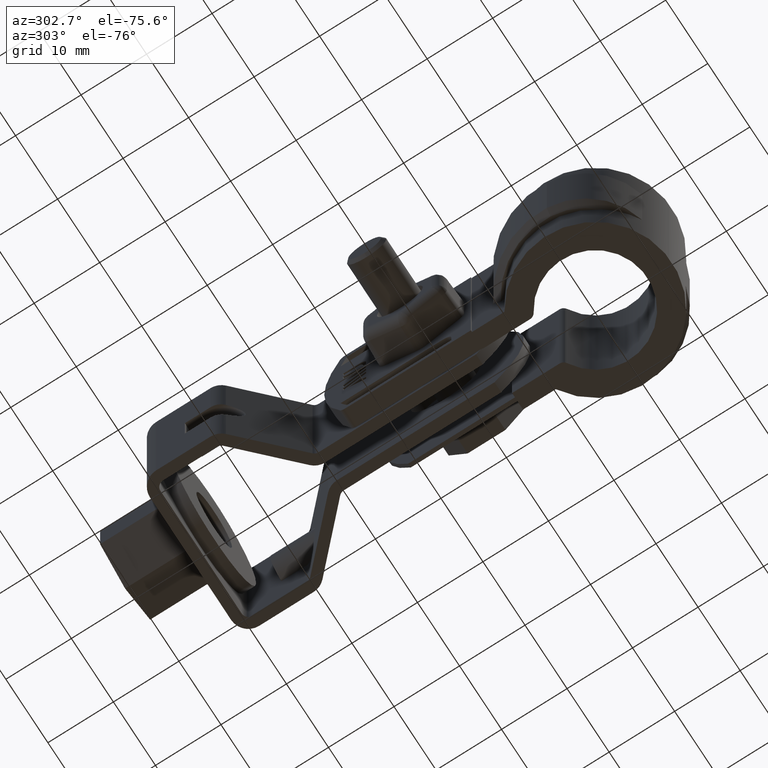
[diagram: clean part render]
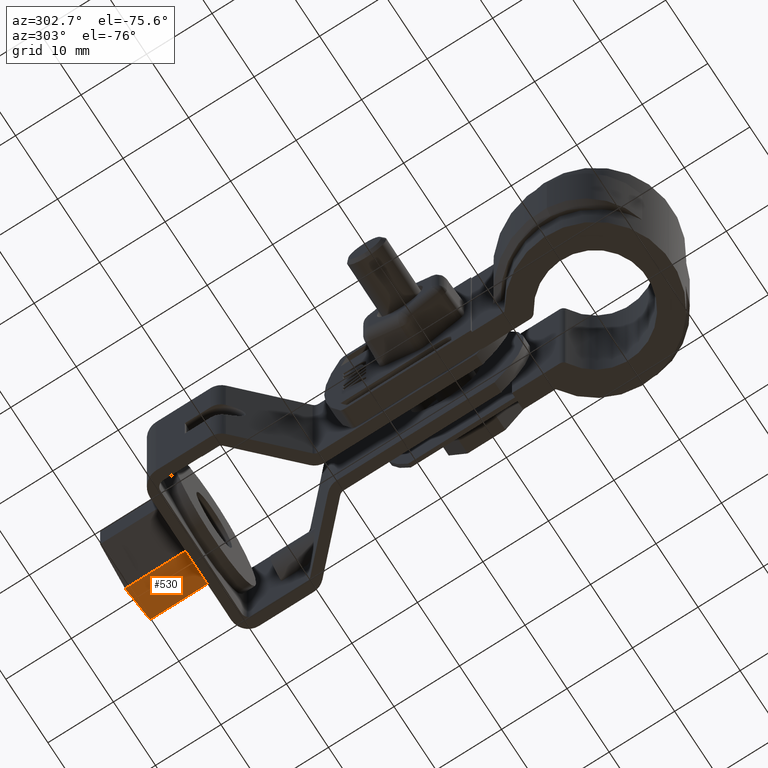
[diagram: same view with one face highlighted and labeled with its STEP entity id]
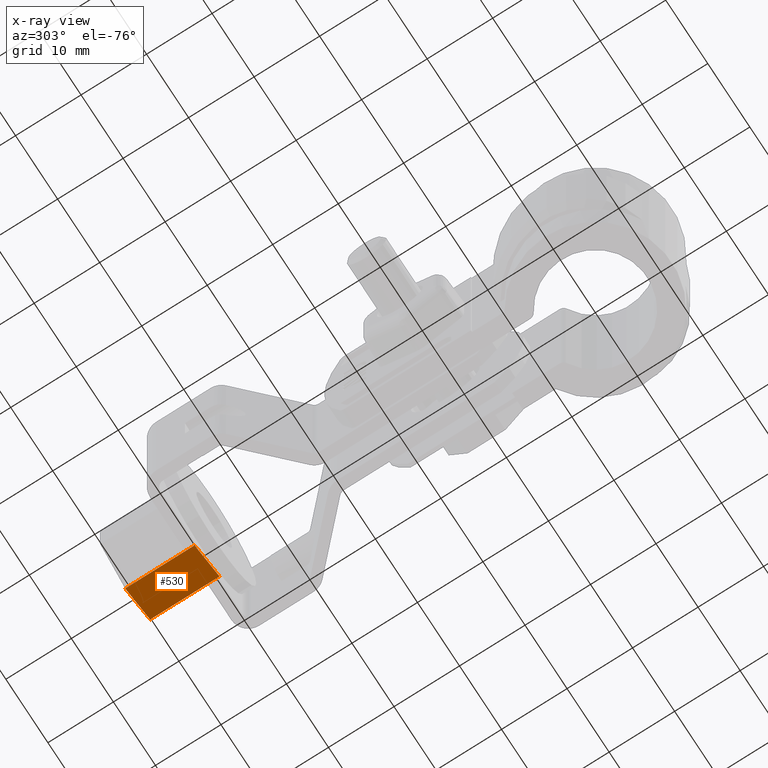
[diagram: x-ray of the same camera — body ghosted, the highlighted face saturated]
A machine part, auxiliary view. The second image highlights one B-rep face of the part: STEP entity #530.
The next image is the same camera in x-ray: the body ghosted, the highlighted face saturated — about 0% of this face is hidden behind the body in this view.
In plain terms, the highlighted planar face has unit normal (-0.5, 0, 0.866).
Its self-contained STEP definition (entity closure, byte-faithful):
#530 = ADVANCED_FACE( '', ( #1045 ), #1046, .F. );
#1045 = FACE_OUTER_BOUND( '', #2326, .T. );
#1046 = PLANE( '', #2327 );
#2326 = EDGE_LOOP( '', ( #5195, #5196, #5197, #5198 ) );
#2327 = AXIS2_PLACEMENT_3D( '', #5199, #5200, #5201 );
#5195 = ORIENTED_EDGE( '', *, *, #7015, .T. );
#5196 = ORIENTED_EDGE( '', *, *, #7016, .F. );
#5197 = ORIENTED_EDGE( '', *, *, #7017, .F. );
#5198 = ORIENTED_EDGE( '', *, *, #7007, .T. );
#5199 = CARTESIAN_POINT( '', ( 5.94999999999805, 71.7954761009042, -15.9352341024528 ) );
#5200 = DIRECTION( '', ( -0.500000000000184, 4.39824635139768E-012, 0.866025403784332 ) );
#5201 = DIRECTION( '', ( 0.866025403784332, 2.71319421082439E-012, 0.500000000000184 ) );
#7007 = EDGE_CURVE( '', #8256, #8254, #8257, .T. );
#7015 = EDGE_CURVE( '', #8254, #8269, #8271, .T. );
#7016 = EDGE_CURVE( '', #8272, #8269, #8273, .T. );
#7017 = EDGE_CURVE( '', #8256, #8272, #8274, .T. );
#8254 = VERTEX_POINT( '', #11402 );
#8256 = VERTEX_POINT( '', #11405 );
#8257 = LINE( '', #11406, #11407 );
#8269 = VERTEX_POINT( '', #11424 );
#8271 = LINE( '', #11427, #11428 );
#8272 = VERTEX_POINT( '', #11429 );
#8273 = LINE( '', #11430, #11431 );
#8274 = LINE( '', #11432, #11433 );
#11402 = CARTESIAN_POINT( '', ( 5.94999999999965, 61.1954761009042, -15.9352341023981 ) );
#11405 = CARTESIAN_POINT( '', ( 5.94999999999805, 71.7954761009042, -15.9352341024528 ) );
#11406 = CARTESIAN_POINT( '', ( 5.94999999999805, 71.7954761009042, -15.9352341024528 ) );
#11407 = VECTOR( '', #13144, 1000.00000000000 );
#11424 = CARTESIAN_POINT( '', ( 3.75243224949035E-013, 61.1954761008856, -19.3704682040776 ) );
#11427 = CARTESIAN_POINT( '', ( 5.94999999999965, 61.1954761009042, -15.9352341023981 ) );
#11428 = VECTOR( '', #13154, 1000.00000000000 );
#11429 = CARTESIAN_POINT( '', ( -1.22081929956445E-012, 71.7954761008856, -19.3704682041323 ) );
#11430 = CARTESIAN_POINT( '', ( -1.22081929956445E-012, 71.7954761008856, -19.3704682041323 ) );
#11431 = VECTOR( '', #13155, 1000.00000000000 );
#11432 = CARTESIAN_POINT( '', ( 5.94999999999805, 71.7954761009042, -15.9352341024528 ) );
#11433 = VECTOR( '', #13156, 1000.00000000000 );
#13144 = DIRECTION( '', ( 1.50571936274857E-013, -1.00000000000000, 5.16559017782484E-012 ) );
#13154 = DIRECTION( '', ( -0.866025403784332, -2.71319421082439E-012, -0.500000000000184 ) );
#13155 = DIRECTION( '', ( 1.50571936274857E-013, -1.00000000000000, 5.16559017782484E-012 ) );
#13156 = DIRECTION( '', ( -0.866025403784332, -2.71319421082439E-012, -0.500000000000184 ) );